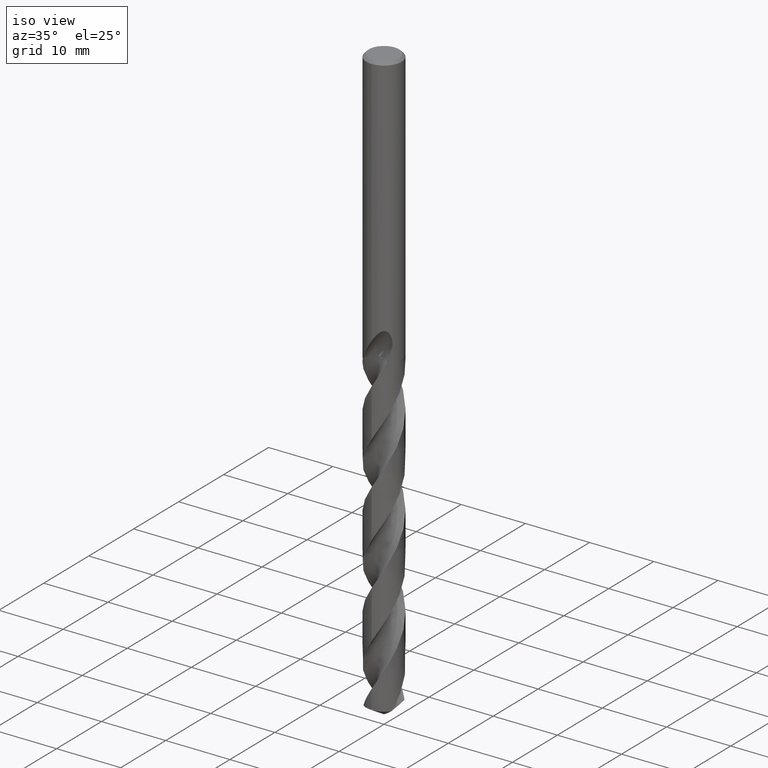
[diagram: clean part render]
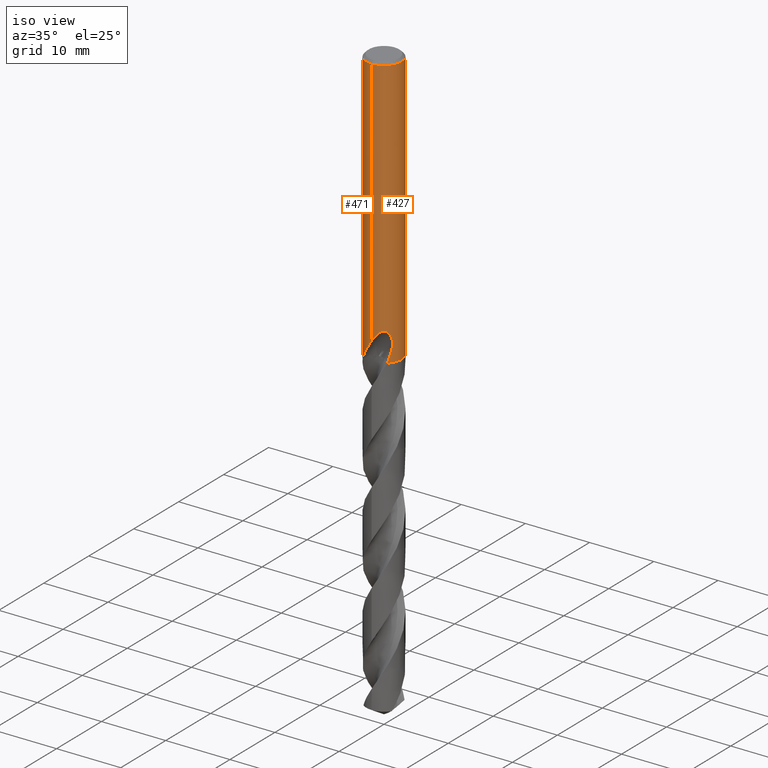
[diagram: same view with one multi-face feature highlighted, each face labeled with its STEP entity id]
A machine part, iso view. The highlighted faces form ONE feature: a constant-radius fillet chain: 2 tangent blend faces with common blend radius 2.75 mm. The faces share edges in the B-rep.
Their STEP definitions:
[1] entity #427 (Cylinder):
#273=EDGE_CURVE('',#601,#277,#772,.T.);
#277=VERTEX_POINT('',#776);
#313=EDGE_CURVE('',#367,#717,#815,.T.);
#317=EDGE_CURVE('',#717,#601,#819,.T.);
#319=VERTEX_POINT('',#821);
#345=EDGE_CURVE('',#531,#367,#851,.T.);
#355=VERTEX_POINT('',#863);
#367=VERTEX_POINT('',#877);
#427=ADVANCED_FACE('',(#942),#943,.T.);
#429=EDGE_CURVE('',#599,#355,#945,.T.);
#493=EDGE_CURVE('',#633,#671,#1015,.T.);
#507=EDGE_CURVE('',#631,#553,#1029,.T.);
#519=EDGE_CURVE('',#319,#699,#1042,.T.);
#531=VERTEX_POINT('',#1054);
#553=VERTEX_POINT('',#1077);
#567=VERTEX_POINT('',#1091);
#569=EDGE_CURVE('',#633,#699,#1093,.T.);
#577=EDGE_CURVE('',#567,#659,#1102,.T.);
#599=VERTEX_POINT('',#1126);
#601=VERTEX_POINT('',#1128);
#631=VERTEX_POINT('',#1162);
#633=VERTEX_POINT('',#1164);
#659=VERTEX_POINT('',#1192);
#671=VERTEX_POINT('',#1207);
#679=EDGE_CURVE('',#319,#531,#1215,.T.);
#695=EDGE_CURVE('',#631,#659,#1232,.T.);
#699=VERTEX_POINT('',#1237);
#707=EDGE_CURVE('',#599,#553,#1245,.T.);
#717=VERTEX_POINT('',#1257);
#723=EDGE_CURVE('',#277,#567,#1263,.T.);
#745=EDGE_CURVE('',#355,#671,#1288,.T.);
#772=LINE('',#1308,#1309);
#776=CARTESIAN_POINT('',(1.33721006514658,2.40299172734129,-26.5150484364821));
#815=LINE('',#1803,#1804);
#819=B_SPLINE_CURVE_WITH_KNOTS('',3,(#1810,#1811,#1812,#1813,#1814,#1815,#1816,#1817),.UNSPECIFIED.,.F.,.F.,(4,2,2,4),(8.22114914194285,8.53550843244374,8.84986772294463,9.48352139234592),.UNSPECIFIED.);
#821=CARTESIAN_POINT('',(-2.17418747032393E-016,2.75,-29.0310253601033));
#851=ELLIPSE('',#2264,8.38198507676688,2.75);
#863=CARTESIAN_POINT('',(2.23751594901622,-1.59875650988449,-40.7991543691702));
#877=CARTESIAN_POINT('',(0.873560781758957,2.60756429653665,-27.3198931596091));
#942=FACE_OUTER_BOUND('',#3842,.T.);
#943=CYLINDRICAL_SURFACE('',#3843,2.75);
#945=B_SPLINE_CURVE_WITH_KNOTS('',3,(#3846,#3847,#3848,#3849,#3850,#3851,#3852,#3853,#3854,#3855,#3856,#3857,#3858,#3859,#3860,#3861,#3862,#3863,#3864,#3865,#3866,#3867,#3868,#3869,#3870,#3871,#3872,#3873,#3874,#3875),.UNSPECIFIED.,.F.,.F.,(4,2,2,2,2,2,2,2,2,2,2,2,2,2,4),(0.0,1.3437091618628,2.07905816346081,2.74564402516214,3.52037638913904,4.45073491943531,5.25484128384644,5.62007727010999,5.88706539598705,6.13974390001877,6.46032615313945,6.92938882101172,7.59618986380262,8.0322299069726,8.49046744309226),.UNSPECIFIED.);
#1015=CIRCLE('',#4686,2.75);
#1029=CIRCLE('',#4885,2.75);
#1042=LINE('',#5015,#5016);
#1054=CARTESIAN_POINT('',(0.29010312703583,2.73465540346202,-28.9998328990228));
#1077=CARTESIAN_POINT('',(3.36766747301154E-016,-2.75,-0.399999999999999));
#1091=CARTESIAN_POINT('',(0.799431726384364,2.63123714530829,-26.000000276873));
#1093=B_SPLINE_CURVE_WITH_KNOTS('',3,(#5324,#5325,#5326,#5327,#5328,#5329,#5330,#5331,#5332,#5333,#5334,#5335,#5336,#5337,#5338,#5339,#5340,#5341,#5342,#5343,#5344,#5345,#5346,#5347,#5348,#5349,#5350,#5351,#5352,#5353),.UNSPECIFIED.,.F.,.F.,(4,2,2,2,2,2,2,2,2,2,2,2,2,2,4),(0.0,1.34370916186278,2.07905816346079,2.74564402516213,3.52037638913908,4.4507349194354,5.25484128384659,5.62007727011006,5.88706539598713,6.13974390001885,6.46032615313941,6.92938882101079,7.59618986379925,8.03222990696782,8.49046744308596),.UNSPECIFIED.);
#1102=B_SPLINE_CURVE_WITH_KNOTS('',3,(#5379,#5380,#5381,#5382,#5383,#5384,#5385,#5386,#5387,#5388,#5389,#5390,#5391,#5392,#5393,#5394,#5395,#5396,#5397,#5398,#5399,#5400,#5401,#5402,#5403,#5404,#5405),.UNSPECIFIED.,.F.,.F.,(4,2,3,2,2,2,2,2,2,2,2,2,4),(-0.544781504389989,-0.272390752194994,0.0,0.272390752194996,0.544781504389992,0.819026043088943,1.09327058178789,1.36428028310444,1.63528998442099,1.90725120410565,2.17921242379032,2.45117364347498,2.72313486315964),.UNSPECIFIED.);
#1126=CARTESIAN_POINT('',(8.81796487228487E-013,-2.75,-39.3818070135054));
#1128=CARTESIAN_POINT('',(1.33721006514658,2.40299172734129,-28.2901657003257));
#1162=CARTESIAN_POINT('',(0.0,2.75,-0.399999999999999));
#1164=CARTESIAN_POINT('',(1.74996988183907,2.12134518941547,-42.3));
#1192=CARTESIAN_POINT('',(-1.16429289846349E-015,2.75,-27.0232688117743));
#1207=CARTESIAN_POINT('',(1.91278221107145,-1.97579457763418,-42.3));
#1215=B_SPLINE_CURVE_WITH_KNOTS('',3,(#6463,#6464,#6465,#6466,#6467,#6468,#6469,#6470,#6471,#6472,#6473,#6474,#6475,#6476,#6477,#6478),.UNSPECIFIED.,.F.,.F.,(4,2,2,2,2,2,2,4),(5.6933891232618,6.32818769792426,6.64424985784949,6.96031201777471,7.27637417769994,7.59243633762516,7.90679566201298,8.22115498640081),.UNSPECIFIED.);
#1232=LINE('',#6653,#6654);
#1237=CARTESIAN_POINT('',(-8.84238977882663E-013,2.75,-39.3818070135054));
#1245=LINE('',#7798,#7799);
#1257=CARTESIAN_POINT('',(0.873560781758956,2.60756429653665,-28.7587351791531));
#1263=B_SPLINE_CURVE_WITH_KNOTS('',3,(#8146,#8147,#8148,#8149,#8150,#8151,#8152,#8153),.UNSPECIFIED.,.F.,.F.,(4,2,2,4),(0.63365369217847,1.26730738435694,1.58166668501394,1.89602598567094),.UNSPECIFIED.);
#1288=B_SPLINE_CURVE_WITH_KNOTS('',3,(#8791,#8792,#8793,#8794),.UNSPECIFIED.,.F.,.F.,(4,4),(0.0,1.57521843187836),.UNSPECIFIED.);
#1308=CARTESIAN_POINT('',(1.33721006514658,2.40299172734129,-27.4026070684039));
#1309=VECTOR('',#8819,1.0);
#1803=CARTESIAN_POINT('',(0.873560781758957,2.60756429653665,-28.0393141693811));
#1804=VECTOR('',#8877,1.0);
#1810=CARTESIAN_POINT('',(0.601489632040882,2.6834139118942,-28.9045509476906));
#1811=CARTESIAN_POINT('',(0.701447817945832,2.66100819274862,-28.8626326680444));
#1812=CARTESIAN_POINT('',(0.796623298204717,2.63371412142096,-28.8108447752873));
#1813=CARTESIAN_POINT('',(0.971824923940671,2.57422125505894,-28.6923202375792));
#1814=CARTESIAN_POINT('',(1.05185934280705,2.54206370558293,-28.6255751231171));
#1815=CARTESIAN_POINT('',(1.26503477913766,2.44674249684982,-28.4126694380146));
#1816=CARTESIAN_POINT('',(1.38932928352855,2.37531482409765,-28.2329958584736));
#1817=CARTESIAN_POINT('',(1.47316443649094,2.32212974294253,-28.0334520749841));
#2264=AXIS2_PLACEMENT_3D('',#8928,#8929,#8930);
#3842=EDGE_LOOP('',(#9024,#9025,#9026,#9027,#9028,#9029,#9030,#9031,#9032,#9033,#9034,#9035,#9036,#9037,#9038));
#3843=AXIS2_PLACEMENT_3D('',#9039,#9040,#9041);
#3846=CARTESIAN_POINT('',(-1.74996988183907,-2.12134518941547,-42.3));
#3847=CARTESIAN_POINT('',(-1.56875403661205,-2.27083631082352,-41.9186466627911));
#3848=CARTESIAN_POINT('',(-1.36059374862,-2.40362250481249,-41.5629200217183));
#3849=CARTESIAN_POINT('',(-0.997625977415598,-2.56652359633652,-40.9684363668679));
#3850=CARTESIAN_POINT('',(-0.866832798877864,-2.61344677877229,-40.7589629714317));
#3851=CARTESIAN_POINT('',(-0.613553441378672,-2.68359227609557,-40.3533417945509));
#3852=CARTESIAN_POINT('',(-0.492186908458969,-2.70837462857852,-40.1590668957964));
#3853=CARTESIAN_POINT('',(-0.229425238219378,-2.74411762868622,-39.7402816831765));
#3854=CARTESIAN_POINT('',(-0.0858221790454658,-2.75247795021598,-39.5124753474329));
#3855=CARTESIAN_POINT('',(0.233044061092436,-2.74562837072234,-39.0252564930299));
#3856=CARTESIAN_POINT('',(0.422126898663139,-2.72479224500972,-38.7480250448905));
#3857=CARTESIAN_POINT('',(0.786300140875955,-2.64088050736189,-38.2916869721627));
#3858=CARTESIAN_POINT('',(0.987392040117653,-2.57714486253417,-38.0694823457717));
#3859=CARTESIAN_POINT('',(1.29197250737324,-2.42991198642466,-37.8611033985666));
#3860=CARTESIAN_POINT('',(1.39294638262973,-2.37424376664441,-37.8095323721426));
#3861=CARTESIAN_POINT('',(1.56988448551531,-2.2596214202516,-37.769935084797));
#3862=CARTESIAN_POINT('',(1.6424607353954,-2.20741888321003,-37.7692135517096));
#3863=CARTESIAN_POINT('',(1.77764118327539,-2.09989181933012,-37.8039425681785));
#3864=CARTESIAN_POINT('',(1.83676368201709,-2.04795713128521,-37.8364906976556));
#3865=CARTESIAN_POINT('',(1.95708251425496,-1.93414230375797,-37.938317951783));
#3866=CARTESIAN_POINT('',(2.01274796524238,-1.87515932018323,-38.0134975547799));
#3867=CARTESIAN_POINT('',(2.12676908478419,-1.7463658769773,-38.2193592851678));
#3868=CARTESIAN_POINT('',(2.1812664025989,-1.67623046610203,-38.3720491578603));
#3869=CARTESIAN_POINT('',(2.28373237922151,-1.53542097167682,-38.7992364949134));
#3870=CARTESIAN_POINT('',(2.32076648445131,-1.47545853550841,-39.1034670007578));
#3871=CARTESIAN_POINT('',(2.339051761766,-1.44620982454372,-39.6663620941464));
#3872=CARTESIAN_POINT('',(2.33472724687543,-1.45338013681144,-39.8904325912064));
#3873=CARTESIAN_POINT('',(2.30426371212637,-1.50123741266447,-40.3451790199591));
#3874=CARTESIAN_POINT('',(2.27707670193375,-1.54338984519179,-40.5741435706793));
#3875=CARTESIAN_POINT('',(2.23751594901622,-1.59875650988449,-40.7991543691702));
#4686=AXIS2_PLACEMENT_3D('',#9123,#9124,#9125);
#4885=AXIS2_PLACEMENT_3D('',#9127,#9128,#9129);
#5015=CARTESIAN_POINT('',(-3.36766747301154E-016,2.75,-36.65));
#5016=VECTOR('',#9138,1.0);
#5324=CARTESIAN_POINT('',(1.74996988183907,2.12134518941547,-42.3));
#5325=CARTESIAN_POINT('',(1.56875403661205,2.27083631082352,-41.9186466627911));
#5326=CARTESIAN_POINT('',(1.36059374862,2.40362250481249,-41.5629200217183));
#5327=CARTESIAN_POINT('',(0.997625977415596,2.56652359633653,-40.9684363668679));
#5328=CARTESIAN_POINT('',(0.866832798877859,2.61344677877229,-40.7589629714317));
#5329=CARTESIAN_POINT('',(0.613553441378672,2.68359227609557,-40.3533417945509));
#5330=CARTESIAN_POINT('',(0.492186908458968,2.70837462857852,-40.1590668957964));
#5331=CARTESIAN_POINT('',(0.229425238219375,2.74411762868622,-39.7402816831765));
#5332=CARTESIAN_POINT('',(0.0858221790454625,2.75247795021598,-39.5124753474329));
#5333=CARTESIAN_POINT('',(-0.233044061092435,2.74562837072235,-39.0252564930299));
#5334=CARTESIAN_POINT('',(-0.422126898663138,2.72479224500972,-38.7480250448905));
#5335=CARTESIAN_POINT('',(-0.786300140875956,2.64088050736189,-38.2916869721627));
#5336=CARTESIAN_POINT('',(-0.987392040117653,2.57714486253417,-38.0694823457717));
#5337=CARTESIAN_POINT('',(-1.29197250737321,2.42991198642467,-37.8611033985666));
#5338=CARTESIAN_POINT('',(-1.39294638262972,2.37424376664442,-37.8095323721426));
#5339=CARTESIAN_POINT('',(-1.56988448551534,2.25962142025158,-37.769935084797));
#5340=CARTESIAN_POINT('',(-1.64246073539541,2.20741888321002,-37.7692135517096));
#5341=CARTESIAN_POINT('',(-1.77764118327538,2.09989181933013,-37.8039425681785));
#5342=CARTESIAN_POINT('',(-1.83676368201706,2.04795713128524,-37.8364906976556));
#5343=CARTESIAN_POINT('',(-1.95708251425498,1.93414230375795,-37.938317951783));
#5344=CARTESIAN_POINT('',(-2.01274796524241,1.8751593201832,-38.01349755478));
#5345=CARTESIAN_POINT('',(-2.12676908478404,1.74636587697746,-38.2193592851675));
#5346=CARTESIAN_POINT('',(-2.1812664025988,1.67623046610216,-38.3720491578599));
#5347=CARTESIAN_POINT('',(-2.28373237922154,1.53542097167677,-38.7992364949135));
#5348=CARTESIAN_POINT('',(-2.32076648445132,1.4754585355084,-39.103467000758));
#5349=CARTESIAN_POINT('',(-2.339051761766,1.44620982454373,-39.6663620941464));
#5350=CARTESIAN_POINT('',(-2.33472724687543,1.45338013681143,-39.8904325912064));
#5351=CARTESIAN_POINT('',(-2.30426371212636,1.50123741266447,-40.3451790199591));
#5352=CARTESIAN_POINT('',(-2.27707670193374,1.5433898451918,-40.5741435706794));
#5353=CARTESIAN_POINT('',(-2.23751594901622,1.59875650988449,-40.7991543691702));
#5379=CARTESIAN_POINT('',(0.665771541632002,2.66819194481075,-25.8142466509837));
#5380=CARTESIAN_POINT('',(0.728886384022112,2.65244342791726,-25.8775915883881));
#5381=CARTESIAN_POINT('',(0.783880707173971,2.63619126654373,-25.9578475863508));
#5382=CARTESIAN_POINT('',(0.857153272768013,2.61328560993418,-26.1344476516523));
#5383=CARTESIAN_POINT('',(0.875400981188567,2.60694708847995,-26.2308450951885));
#5384=CARTESIAN_POINT('',(0.875400981188567,2.60694708847995,-26.3216420125868));
#5385=CARTESIAN_POINT('',(0.875400981188567,2.60694708847995,-26.4124389299851));
#5386=CARTESIAN_POINT('',(0.857153272768012,2.61328560993418,-26.5088363735212));
#5387=CARTESIAN_POINT('',(0.783880707173968,2.63619126654374,-26.6854364388227));
#5388=CARTESIAN_POINT('',(0.728886384022113,2.65244342791726,-26.7656924367854));
#5389=CARTESIAN_POINT('',(0.602227163943505,2.68404764004212,-26.8928134128306));
#5390=CARTESIAN_POINT('',(0.521733300217773,2.70154460976948,-26.9482343341297));
#5391=CARTESIAN_POINT('',(0.344541424683386,2.72980587615917,-27.0221021344558));
#5392=CARTESIAN_POINT('',(0.247793037073933,2.74033853472331,-27.0405166027747));
#5393=CARTESIAN_POINT('',(0.0663362759674763,2.75068358664663,-27.0405166027747));
#5394=CARTESIAN_POINT('',(-0.0299116612408722,2.75126246188806,-27.0224894597774));
#5395=CARTESIAN_POINT('',(-0.206833293028733,2.7436398872559,-26.9492693129404));
#5396=CARTESIAN_POINT('',(-0.287522369074154,2.73568166560296,-26.8940883573449));
#5397=CARTESIAN_POINT('',(-0.415119997588476,2.71925130881564,-26.7667840769712));
#5398=CARTESIAN_POINT('',(-0.470538724037373,2.7097040517631,-26.6860287830353));
#5399=CARTESIAN_POINT('',(-0.544159636830953,2.69588446720977,-26.5087981763507));
#5400=CARTESIAN_POINT('',(-0.562348199187247,2.69188864979049,-26.4122957524817));
#5401=CARTESIAN_POINT('',(-0.562348199187247,2.69188864979049,-26.2309882726919));
#5402=CARTESIAN_POINT('',(-0.544159636830955,2.69588446720977,-26.1344858488229));
#5403=CARTESIAN_POINT('',(-0.470538724037374,2.7097040517631,-25.9572552421382));
#5404=CARTESIAN_POINT('',(-0.415119997588476,2.71925130881564,-25.8764999482023));
#5405=CARTESIAN_POINT('',(-0.351209380394395,2.72748088373191,-25.8127362621146));
#6463=CARTESIAN_POINT('',(-1.52996159165941,2.2851077716482,-28.0332799124806));
#6464=CARTESIAN_POINT('',(-1.44631597300797,2.34111137509018,-28.2324366615127));
#6465=CARTESIAN_POINT('',(-1.32250219035285,2.4162199836653,-28.4115593374441));
#6466=CARTESIAN_POINT('',(-1.11019118417717,2.51715742946781,-28.624151057468));
#6467=CARTESIAN_POINT('',(-1.03027263404493,2.55141531254613,-28.6909833479814));
#6468=CARTESIAN_POINT('',(-0.855212746268426,2.61529978320132,-28.8097518079273));
#6469=CARTESIAN_POINT('',(-0.760062546766947,2.64488607247651,-28.8616965876911));
#6470=CARTESIAN_POINT('',(-0.560004548992131,2.69434822306571,-28.9458777045139));
#6471=CARTESIAN_POINT('',(-0.454895780759893,2.71424255436112,-28.9781809697304));
#6472=CARTESIAN_POINT('',(-0.241751439374123,2.74145929330977,-29.0208867485696));
#6473=CARTESIAN_POINT('',(-0.133710619323009,2.74876716853734,-29.0312723335086));
#6474=CARTESIAN_POINT('',(0.0764186989741135,2.75093445591884,-29.0312723335086));
#6475=CARTESIAN_POINT('',(0.184032629107216,2.74591589544373,-29.0209962157904));
#6476=CARTESIAN_POINT('',(0.396586815044307,2.72335106284905,-28.9785871699004));
#6477=CARTESIAN_POINT('',(0.501531717356681,2.70581958119015,-28.9464696632046));
#6478=CARTESIAN_POINT('',(0.601489911800748,2.68341384918576,-28.9045513793387));
#6653=CARTESIAN_POINT('',(-3.36766747301154E-016,2.75,-36.65));
#6654=VECTOR('',#9332,1.0);
#7798=CARTESIAN_POINT('',(3.36766747301154E-016,-2.75,-36.65));
#7799=VECTOR('',#9344,1.0);
#8146=CARTESIAN_POINT('',(1.47316444420588,2.32212973804815,-26.7717620750811));
#8147=CARTESIAN_POINT('',(1.38932928819419,2.37531482152837,-26.5722182845909));
#8148=CARTESIAN_POINT('',(1.2650347793022,2.44674249712733,-26.3925446987512));
#8149=CARTESIAN_POINT('',(1.05185933527012,2.54206370877889,-26.1796390063729));
#8150=CARTESIAN_POINT('',(0.971824913698824,2.5742212590321,-26.1128938897649));
#8151=CARTESIAN_POINT('',(0.796623282041988,2.63371412641395,-25.9943693482392));
#8152=CARTESIAN_POINT('',(0.701447798566565,2.66100819798206,-25.9425814538105));
#8153=CARTESIAN_POINT('',(0.601489609302798,2.68341391699096,-25.9006631728201));
#8791=CARTESIAN_POINT('',(2.23751594906884,-1.59875650981085,-40.7991543691992));
#8792=CARTESIAN_POINT('',(2.14915335052936,-1.7224230733682,-41.3017477323627));
#8793=CARTESIAN_POINT('',(2.04271716769281,-1.85000352808121,-41.8072979768417));
#8794=CARTESIAN_POINT('',(1.91278221107145,-1.97579457763418,-42.3));
#8819=DIRECTION('',(-0.0,-0.0,1.0));
#8877=DIRECTION('',(0.0,0.0,-1.0));
#8928=CARTESIAN_POINT('',(0.0,0.0,-29.8351219173269));
#8929=DIRECTION('',(0.944648353914092,0.0,-0.328084573619969));
#8930=DIRECTION('',(0.328084573619969,-0.0,0.944648353914092));
#9024=ORIENTED_EDGE('',*,*,#695,.F.);
#9025=ORIENTED_EDGE('',*,*,#507,.T.);
#9026=ORIENTED_EDGE('',*,*,#707,.F.);
#9027=ORIENTED_EDGE('',*,*,#429,.T.);
#9028=ORIENTED_EDGE('',*,*,#745,.T.);
#9029=ORIENTED_EDGE('',*,*,#493,.F.);
#9030=ORIENTED_EDGE('',*,*,#569,.T.);
#9031=ORIENTED_EDGE('',*,*,#519,.F.);
#9032=ORIENTED_EDGE('',*,*,#679,.T.);
#9033=ORIENTED_EDGE('',*,*,#345,.T.);
#9034=ORIENTED_EDGE('',*,*,#313,.T.);
#9035=ORIENTED_EDGE('',*,*,#317,.T.);
#9036=ORIENTED_EDGE('',*,*,#273,.T.);
#9037=ORIENTED_EDGE('',*,*,#723,.T.);
#9038=ORIENTED_EDGE('',*,*,#577,.T.);
#9039=CARTESIAN_POINT('',(0.0,0.0,-36.65));
#9040=DIRECTION('',(-0.0,-0.0,1.0));
#9041=DIRECTION('',(0.0,1.0,0.0));
#9123=CARTESIAN_POINT('',(0.0,0.0,-42.3));
#9124=DIRECTION('',(0.0,0.0,-1.0));
#9125=DIRECTION('',(0.0,1.0,0.0));
#9127=CARTESIAN_POINT('',(0.0,0.0,-0.399999999999999));
#9128=DIRECTION('',(0.0,0.0,-1.0));
#9129=DIRECTION('',(0.0,1.0,0.0));
#9138=DIRECTION('',(0.0,0.0,-1.0));
#9332=DIRECTION('',(0.0,0.0,-1.0));
#9344=DIRECTION('',(-0.0,-0.0,1.0));
[2] entity #471 (Cylinder):
#307=VERTEX_POINT('',#809);
#319=VERTEX_POINT('',#821);
#361=EDGE_CURVE('',#639,#647,#871,.T.);
#411=VERTEX_POINT('',#924);
#453=VERTEX_POINT('',#969);
#465=EDGE_CURVE('',#647,#307,#983,.T.);
#469=VERTEX_POINT('',#988);
#471=ADVANCED_FACE('',(#990),#991,.T.);
#479=EDGE_CURVE('',#659,#505,#1000,.T.);
#505=VERTEX_POINT('',#1027);
#519=EDGE_CURVE('',#319,#699,#1042,.T.);
#537=EDGE_CURVE('',#411,#599,#1060,.T.);
#543=VERTEX_POINT('',#1066);
#551=EDGE_CURVE('',#699,#543,#1075,.T.);
#553=VERTEX_POINT('',#1077);
#571=EDGE_CURVE('',#307,#319,#1095,.T.);
#599=VERTEX_POINT('',#1126);
#623=VERTEX_POINT('',#1153);
#631=VERTEX_POINT('',#1162);
#639=VERTEX_POINT('',#1171);
#647=VERTEX_POINT('',#1180);
#653=EDGE_CURVE('',#543,#623,#1186,.T.);
#659=VERTEX_POINT('',#1192);
#673=EDGE_CURVE('',#453,#469,#1209,.T.);
#695=EDGE_CURVE('',#631,#659,#1232,.T.);
#699=VERTEX_POINT('',#1237);
#703=EDGE_CURVE('',#505,#453,#1241,.T.);
#707=EDGE_CURVE('',#599,#553,#1245,.T.);
#727=EDGE_CURVE('',#411,#623,#1268,.T.);
#749=EDGE_CURVE('',#469,#639,#1292,.T.);
#751=EDGE_CURVE('',#553,#631,#1294,.T.);
#809=CARTESIAN_POINT('',(-1.337052752443,2.40307926152772,-28.3720803908795));
#821=CARTESIAN_POINT('',(-2.17418747032393E-016,2.75,-29.0310253601033));
#871=LINE('',#3388,#3389);
#924=CARTESIAN_POINT('',(-1.74996988183907,-2.12134518941547,-42.3));
#969=CARTESIAN_POINT('',(-0.562333990228013,2.69189161806976,-26.3171221986971));
#983=ELLIPSE('',#4451,3.06605318811787,2.75);
#988=CARTESIAN_POINT('',(-1.0350734039088,2.54776824858947,-26.3171221986971));
#990=FACE_OUTER_BOUND('',#4458,.T.);
#991=CYLINDRICAL_SURFACE('',#4459,2.75);
#1000=B_SPLINE_CURVE_WITH_KNOTS('',3,(#4469,#4470,#4471,#4472,#4473,#4474,#4475,#4476,#4477,#4478,#4479,#4480,#4481,#4482,#4483,#4484,#4485,#4486,#4487,#4488,#4489,#4490,#4491,#4492,#4493,#4494,#4495),.UNSPECIFIED.,.F.,.F.,(4,2,3,2,2,2,2,2,2,2,2,2,4),(-0.544781504389989,-0.272390752194994,0.0,0.272390752194996,0.544781504389992,0.819026043088943,1.09327058178789,1.36428028310444,1.63528998442099,1.90725120410565,2.17921242379032,2.45117364347498,2.72313486315964),.UNSPECIFIED.);
#1027=CARTESIAN_POINT('',(-0.486378944383046,2.70664654553579,-26.6432837483006));
#1042=LINE('',#5015,#5016);
#1060=B_SPLINE_CURVE_WITH_KNOTS('',3,(#5226,#5227,#5228,#5229,#5230,#5231,#5232,#5233,#5234,#5235,#5236,#5237,#5238,#5239,#5240,#5241,#5242,#5243,#5244,#5245,#5246,#5247,#5248,#5249,#5250,#5251,#5252,#5253,#5254,#5255),.UNSPECIFIED.,.F.,.F.,(4,2,2,2,2,2,2,2,2,2,2,2,2,2,4),(0.0,1.3437091618628,2.07905816346081,2.74564402516214,3.52037638913904,4.45073491943531,5.25484128384644,5.62007727010999,5.88706539598705,6.13974390001877,6.46032615313945,6.92938882101172,7.59618986380262,8.0322299069726,8.49046744309226),.UNSPECIFIED.);
#1066=CARTESIAN_POINT('',(-2.23751594901622,1.59875650988449,-40.7991543691702));
#1075=B_SPLINE_CURVE_WITH_KNOTS('',3,(#5274,#5275,#5276,#5277,#5278,#5279,#5280,#5281,#5282,#5283,#5284,#5285,#5286,#5287,#5288,#5289,#5290,#5291,#5292,#5293,#5294,#5295,#5296,#5297,#5298,#5299,#5300,#5301,#5302,#5303),.UNSPECIFIED.,.F.,.F.,(4,2,2,2,2,2,2,2,2,2,2,2,2,2,4),(0.0,1.34370916186278,2.07905816346079,2.74564402516213,3.52037638913908,4.4507349194354,5.25484128384659,5.62007727011006,5.88706539598713,6.13974390001885,6.46032615313941,6.92938882101079,7.59618986379925,8.03222990696782,8.49046744308596),.UNSPECIFIED.);
#1077=CARTESIAN_POINT('',(3.36766747301154E-016,-2.75,-0.399999999999999));
#1095=B_SPLINE_CURVE_WITH_KNOTS('',3,(#5356,#5357,#5358,#5359,#5360,#5361,#5362,#5363,#5364,#5365,#5366,#5367,#5368,#5369,#5370,#5371),.UNSPECIFIED.,.F.,.F.,(4,2,2,2,2,2,2,4),(5.6933891232618,6.32818769792426,6.64424985784949,6.96031201777471,7.27637417769994,7.59243633762516,7.90679566201298,8.22115498640081),.UNSPECIFIED.);
#1126=CARTESIAN_POINT('',(8.81796487228487E-013,-2.75,-39.3818070135054));
#1153=CARTESIAN_POINT('',(-1.91278221107145,1.97579457763418,-42.3));
#1162=CARTESIAN_POINT('',(0.0,2.75,-0.399999999999999));
#1171=CARTESIAN_POINT('',(2.35719168458961E-016,2.75,-27.5000801551881));
#1180=CARTESIAN_POINT('',(-3.36766747301154E-016,2.75,-27.7128911336578));
#1186=B_SPLINE_CURVE_WITH_KNOTS('',3,(#6420,#6421,#6422,#6423),.UNSPECIFIED.,.F.,.F.,(4,4),(0.0,1.57521843187834),.UNSPECIFIED.);
#1192=CARTESIAN_POINT('',(-1.16429289846349E-015,2.75,-27.0232688117743));
#1209=CIRCLE('',#6456,2.75);
#1232=LINE('',#6653,#6654);
#1237=CARTESIAN_POINT('',(-8.84238977882663E-013,2.75,-39.3818070135054));
#1241=B_SPLINE_CURVE_WITH_KNOTS('',3,(#7765,#7766,#7767,#7768,#7769,#7770,#7771,#7772,#7773,#7774,#7775,#7776,#7777,#7778,#7779,#7780,#7781,#7782,#7783,#7784,#7785,#7786,#7787,#7788,#7789,#7790,#7791),.UNSPECIFIED.,.F.,.F.,(4,2,3,2,2,2,2,2,2,2,2,2,4),(-0.544781504389989,-0.272390752194994,0.0,0.272390752194996,0.544781504389992,0.819026043088943,1.09327058178789,1.36428028310444,1.63528998442099,1.90725120410565,2.17921242379032,2.45117364347498,2.72313486315964),.UNSPECIFIED.);
#1245=LINE('',#7798,#7799);
#1268=CIRCLE('',#8562,2.75);
#1292=B_SPLINE_CURVE_WITH_KNOTS('',3,(#8801,#8802,#8803,#8804,#8805,#8806,#8807,#8808,#8809,#8810,#8811,#8812,#8813,#8814),.UNSPECIFIED.,.F.,.F.,(4,2,2,2,2,2,4),(3.1689505620908,3.62058983596024,4.07222910982969,4.52386838369913,4.9721438344798,5.42041928526047,5.87740577220251),.UNSPECIFIED.);
#1294=CIRCLE('',#8817,2.75);
#3388=CARTESIAN_POINT('',(-3.36766747301154E-016,2.75,-36.65));
#3389=VECTOR('',#8966,1.0);
#4451=AXIS2_PLACEMENT_3D('',#9062,#9063,#9064);
#4458=EDGE_LOOP('',(#9074,#9075,#9076,#9077,#9078,#9079,#9080,#9081,#9082,#9083,#9084,#9085,#9086,#9087,#9088));
#4459=AXIS2_PLACEMENT_3D('',#9089,#9090,#9091);
#4469=CARTESIAN_POINT('',(0.665771541632002,2.66819194481075,-25.8142466509837));
#4470=CARTESIAN_POINT('',(0.728886384022112,2.65244342791726,-25.8775915883881));
#4471=CARTESIAN_POINT('',(0.783880707173971,2.63619126654373,-25.9578475863508));
#4472=CARTESIAN_POINT('',(0.857153272768013,2.61328560993418,-26.1344476516523));
#4473=CARTESIAN_POINT('',(0.875400981188567,2.60694708847995,-26.2308450951885));
#4474=CARTESIAN_POINT('',(0.875400981188567,2.60694708847995,-26.3216420125868));
#4475=CARTESIAN_POINT('',(0.875400981188567,2.60694708847995,-26.4124389299851));
#4476=CARTESIAN_POINT('',(0.857153272768012,2.61328560993418,-26.5088363735212));
#4477=CARTESIAN_POINT('',(0.783880707173968,2.63619126654374,-26.6854364388227));
#4478=CARTESIAN_POINT('',(0.728886384022113,2.65244342791726,-26.7656924367854));
#4479=CARTESIAN_POINT('',(0.602227163943505,2.68404764004212,-26.8928134128306));
#4480=CARTESIAN_POINT('',(0.521733300217773,2.70154460976948,-26.9482343341297));
#4481=CARTESIAN_POINT('',(0.344541424683386,2.72980587615917,-27.0221021344558));
#4482=CARTESIAN_POINT('',(0.247793037073933,2.74033853472331,-27.0405166027747));
#4483=CARTESIAN_POINT('',(0.0663362759674763,2.75068358664663,-27.0405166027747));
#4484=CARTESIAN_POINT('',(-0.0299116612408722,2.75126246188806,-27.0224894597774));
#4485=CARTESIAN_POINT('',(-0.206833293028733,2.7436398872559,-26.9492693129404));
#4486=CARTESIAN_POINT('',(-0.287522369074154,2.73568166560296,-26.8940883573449));
#4487=CARTESIAN_POINT('',(-0.415119997588476,2.71925130881564,-26.7667840769712));
#4488=CARTESIAN_POINT('',(-0.470538724037373,2.7097040517631,-26.6860287830353));
#4489=CARTESIAN_POINT('',(-0.544159636830953,2.69588446720977,-26.5087981763507));
#4490=CARTESIAN_POINT('',(-0.562348199187247,2.69188864979049,-26.4122957524817));
#4491=CARTESIAN_POINT('',(-0.562348199187247,2.69188864979049,-26.2309882726919));
#4492=CARTESIAN_POINT('',(-0.544159636830955,2.69588446720977,-26.1344858488229));
#4493=CARTESIAN_POINT('',(-0.470538724037374,2.7097040517631,-25.9572552421382));
#4494=CARTESIAN_POINT('',(-0.415119997588476,2.71925130881564,-25.8764999482023));
#4495=CARTESIAN_POINT('',(-0.351209380394395,2.72748088373191,-25.8127362621146));
#5015=CARTESIAN_POINT('',(-3.36766747301154E-016,2.75,-36.65));
#5016=VECTOR('',#9138,1.0);
#5226=CARTESIAN_POINT('',(-1.74996988183907,-2.12134518941547,-42.3));
#5227=CARTESIAN_POINT('',(-1.56875403661205,-2.27083631082352,-41.9186466627911));
#5228=CARTESIAN_POINT('',(-1.36059374862,-2.40362250481249,-41.5629200217183));
#5229=CARTESIAN_POINT('',(-0.997625977415598,-2.56652359633652,-40.9684363668679));
#5230=CARTESIAN_POINT('',(-0.866832798877864,-2.61344677877229,-40.7589629714317));
#5231=CARTESIAN_POINT('',(-0.613553441378672,-2.68359227609557,-40.3533417945509));
#5232=CARTESIAN_POINT('',(-0.492186908458969,-2.70837462857852,-40.1590668957964));
#5233=CARTESIAN_POINT('',(-0.229425238219378,-2.74411762868622,-39.7402816831765));
#5234=CARTESIAN_POINT('',(-0.0858221790454658,-2.75247795021598,-39.5124753474329));
#5235=CARTESIAN_POINT('',(0.233044061092436,-2.74562837072234,-39.0252564930299));
#5236=CARTESIAN_POINT('',(0.422126898663139,-2.72479224500972,-38.7480250448905));
#5237=CARTESIAN_POINT('',(0.786300140875955,-2.64088050736189,-38.2916869721627));
#5238=CARTESIAN_POINT('',(0.987392040117653,-2.57714486253417,-38.0694823457717));
#5239=CARTESIAN_POINT('',(1.29197250737324,-2.42991198642466,-37.8611033985666));
#5240=CARTESIAN_POINT('',(1.39294638262973,-2.37424376664441,-37.8095323721426));
#5241=CARTESIAN_POINT('',(1.56988448551531,-2.2596214202516,-37.769935084797));
#5242=CARTESIAN_POINT('',(1.6424607353954,-2.20741888321003,-37.7692135517096));
#5243=CARTESIAN_POINT('',(1.77764118327539,-2.09989181933012,-37.8039425681785));
#5244=CARTESIAN_POINT('',(1.83676368201709,-2.04795713128521,-37.8364906976556));
#5245=CARTESIAN_POINT('',(1.95708251425496,-1.93414230375797,-37.938317951783));
#5246=CARTESIAN_POINT('',(2.01274796524238,-1.87515932018323,-38.0134975547799));
#5247=CARTESIAN_POINT('',(2.12676908478419,-1.7463658769773,-38.2193592851678));
#5248=CARTESIAN_POINT('',(2.1812664025989,-1.67623046610203,-38.3720491578603));
#5249=CARTESIAN_POINT('',(2.28373237922151,-1.53542097167682,-38.7992364949134));
#5250=CARTESIAN_POINT('',(2.32076648445131,-1.47545853550841,-39.1034670007578));
#5251=CARTESIAN_POINT('',(2.339051761766,-1.44620982454372,-39.6663620941464));
#5252=CARTESIAN_POINT('',(2.33472724687543,-1.45338013681144,-39.8904325912064));
#5253=CARTESIAN_POINT('',(2.30426371212637,-1.50123741266447,-40.3451790199591));
#5254=CARTESIAN_POINT('',(2.27707670193375,-1.54338984519179,-40.5741435706793));
#5255=CARTESIAN_POINT('',(2.23751594901622,-1.59875650988449,-40.7991543691702));
#5274=CARTESIAN_POINT('',(1.74996988183907,2.12134518941547,-42.3));
#5275=CARTESIAN_POINT('',(1.56875403661205,2.27083631082352,-41.9186466627911));
#5276=CARTESIAN_POINT('',(1.36059374862,2.40362250481249,-41.5629200217183));
#5277=CARTESIAN_POINT('',(0.997625977415596,2.56652359633653,-40.9684363668679));
#5278=CARTESIAN_POINT('',(0.866832798877859,2.61344677877229,-40.7589629714317));
#5279=CARTESIAN_POINT('',(0.613553441378672,2.68359227609557,-40.3533417945509));
#5280=CARTESIAN_POINT('',(0.492186908458968,2.70837462857852,-40.1590668957964));
#5281=CARTESIAN_POINT('',(0.229425238219375,2.74411762868622,-39.7402816831765));
#5282=CARTESIAN_POINT('',(0.0858221790454625,2.75247795021598,-39.5124753474329));
#5283=CARTESIAN_POINT('',(-0.233044061092435,2.74562837072235,-39.0252564930299));
#5284=CARTESIAN_POINT('',(-0.422126898663138,2.72479224500972,-38.7480250448905));
#5285=CARTESIAN_POINT('',(-0.786300140875956,2.64088050736189,-38.2916869721627));
#5286=CARTESIAN_POINT('',(-0.987392040117653,2.57714486253417,-38.0694823457717));
#5287=CARTESIAN_POINT('',(-1.29197250737321,2.42991198642467,-37.8611033985666));
#5288=CARTESIAN_POINT('',(-1.39294638262972,2.37424376664442,-37.8095323721426));
#5289=CARTESIAN_POINT('',(-1.56988448551534,2.25962142025158,-37.769935084797));
#5290=CARTESIAN_POINT('',(-1.64246073539541,2.20741888321002,-37.7692135517096));
#5291=CARTESIAN_POINT('',(-1.77764118327538,2.09989181933013,-37.8039425681785));
#5292=CARTESIAN_POINT('',(-1.83676368201706,2.04795713128524,-37.8364906976556));
#5293=CARTESIAN_POINT('',(-1.95708251425498,1.93414230375795,-37.938317951783));
#5294=CARTESIAN_POINT('',(-2.01274796524241,1.8751593201832,-38.01349755478));
#5295=CARTESIAN_POINT('',(-2.12676908478404,1.74636587697746,-38.2193592851675));
#5296=CARTESIAN_POINT('',(-2.1812664025988,1.67623046610216,-38.3720491578599));
#5297=CARTESIAN_POINT('',(-2.28373237922154,1.53542097167677,-38.7992364949135));
#5298=CARTESIAN_POINT('',(-2.32076648445132,1.4754585355084,-39.103467000758));
#5299=CARTESIAN_POINT('',(-2.339051761766,1.44620982454373,-39.6663620941464));
#5300=CARTESIAN_POINT('',(-2.33472724687543,1.45338013681143,-39.8904325912064));
#5301=CARTESIAN_POINT('',(-2.30426371212636,1.50123741266447,-40.3451790199591));
#5302=CARTESIAN_POINT('',(-2.27707670193374,1.5433898451918,-40.5741435706794));
#5303=CARTESIAN_POINT('',(-2.23751594901622,1.59875650988449,-40.7991543691702));
#5356=CARTESIAN_POINT('',(-1.52996159165941,2.2851077716482,-28.0332799124806));
#5357=CARTESIAN_POINT('',(-1.44631597300797,2.34111137509018,-28.2324366615127));
#5358=CARTESIAN_POINT('',(-1.32250219035285,2.4162199836653,-28.4115593374441));
#5359=CARTESIAN_POINT('',(-1.11019118417717,2.51715742946781,-28.624151057468));
#5360=CARTESIAN_POINT('',(-1.03027263404493,2.55141531254613,-28.6909833479814));
#5361=CARTESIAN_POINT('',(-0.855212746268426,2.61529978320132,-28.8097518079273));
#5362=CARTESIAN_POINT('',(-0.760062546766947,2.64488607247651,-28.8616965876911));
#5363=CARTESIAN_POINT('',(-0.560004548992131,2.69434822306571,-28.9458777045139));
#5364=CARTESIAN_POINT('',(-0.454895780759893,2.71424255436112,-28.9781809697304));
#5365=CARTESIAN_POINT('',(-0.241751439374123,2.74145929330977,-29.0208867485696));
#5366=CARTESIAN_POINT('',(-0.133710619323009,2.74876716853734,-29.0312723335086));
#5367=CARTESIAN_POINT('',(0.0764186989741135,2.75093445591884,-29.0312723335086));
#5368=CARTESIAN_POINT('',(0.184032629107216,2.74591589544373,-29.0209962157904));
#5369=CARTESIAN_POINT('',(0.396586815044307,2.72335106284905,-28.9785871699004));
#5370=CARTESIAN_POINT('',(0.501531717356681,2.70581958119015,-28.9464696632046));
#5371=CARTESIAN_POINT('',(0.601489911800748,2.68341384918576,-28.9045513793387));
#6420=CARTESIAN_POINT('',(-2.23751594906884,1.59875650981085,-40.7991543691992));
#6421=CARTESIAN_POINT('',(-2.14915335052936,1.7224230733682,-41.3017477323627));
#6422=CARTESIAN_POINT('',(-2.04271716769281,1.85000352808121,-41.8072979768417));
#6423=CARTESIAN_POINT('',(-1.91278221107145,1.97579457763418,-42.3));
#6456=AXIS2_PLACEMENT_3D('',#9310,#9311,#9312);
#6653=CARTESIAN_POINT('',(-3.36766747301154E-016,2.75,-36.65));
#6654=VECTOR('',#9332,1.0);
#7765=CARTESIAN_POINT('',(0.665771541632002,2.66819194481075,-25.8142466509837));
#7766=CARTESIAN_POINT('',(0.728886384022112,2.65244342791726,-25.8775915883881));
#7767=CARTESIAN_POINT('',(0.783880707173971,2.63619126654373,-25.9578475863508));
#7768=CARTESIAN_POINT('',(0.857153272768013,2.61328560993418,-26.1344476516523));
#7769=CARTESIAN_POINT('',(0.875400981188567,2.60694708847995,-26.2308450951885));
#7770=CARTESIAN_POINT('',(0.875400981188567,2.60694708847995,-26.3216420125868));
#7771=CARTESIAN_POINT('',(0.875400981188567,2.60694708847995,-26.4124389299851));
#7772=CARTESIAN_POINT('',(0.857153272768012,2.61328560993418,-26.5088363735212));
#7773=CARTESIAN_POINT('',(0.783880707173968,2.63619126654374,-26.6854364388227));
#7774=CARTESIAN_POINT('',(0.728886384022113,2.65244342791726,-26.7656924367854));
#7775=CARTESIAN_POINT('',(0.602227163943505,2.68404764004212,-26.8928134128306));
#7776=CARTESIAN_POINT('',(0.521733300217773,2.70154460976948,-26.9482343341297));
#7777=CARTESIAN_POINT('',(0.344541424683386,2.72980587615917,-27.0221021344558));
#7778=CARTESIAN_POINT('',(0.247793037073933,2.74033853472331,-27.0405166027747));
#7779=CARTESIAN_POINT('',(0.0663362759674763,2.75068358664663,-27.0405166027747));
#7780=CARTESIAN_POINT('',(-0.0299116612408722,2.75126246188806,-27.0224894597774));
#7781=CARTESIAN_POINT('',(-0.206833293028733,2.7436398872559,-26.9492693129404));
#7782=CARTESIAN_POINT('',(-0.287522369074154,2.73568166560296,-26.8940883573449));
#7783=CARTESIAN_POINT('',(-0.415119997588476,2.71925130881564,-26.7667840769712));
#7784=CARTESIAN_POINT('',(-0.470538724037373,2.7097040517631,-26.6860287830353));
#7785=CARTESIAN_POINT('',(-0.544159636830953,2.69588446720977,-26.5087981763507));
#7786=CARTESIAN_POINT('',(-0.562348199187247,2.69188864979049,-26.4122957524817));
#7787=CARTESIAN_POINT('',(-0.562348199187247,2.69188864979049,-26.2309882726919));
#7788=CARTESIAN_POINT('',(-0.544159636830955,2.69588446720977,-26.1344858488229));
#7789=CARTESIAN_POINT('',(-0.470538724037374,2.7097040517631,-25.9572552421382));
#7790=CARTESIAN_POINT('',(-0.415119997588476,2.71925130881564,-25.8764999482023));
#7791=CARTESIAN_POINT('',(-0.351209380394395,2.72748088373191,-25.8127362621146));
#7798=CARTESIAN_POINT('',(3.36766747301154E-016,-2.75,-36.65));
#7799=VECTOR('',#9344,1.0);
#8562=AXIS2_PLACEMENT_3D('',#9372,#9373,#9374);
#8801=CARTESIAN_POINT('',(-0.943825986209588,2.58296196405512,-25.8706098036075));
#8802=CARTESIAN_POINT('',(-1.00466420228044,2.5607314329689,-26.0163710954904));
#8803=CARTESIAN_POINT('',(-1.03510901790186,2.54775377951996,-26.1757554361096));
#8804=CARTESIAN_POINT('',(-1.03510901790186,2.54775377951996,-26.4768482853559));
#8805=CARTESIAN_POINT('',(-1.00466420228044,2.5607314329689,-26.6362326259752));
#8806=CARTESIAN_POINT('',(-0.882987770139003,2.60519249514174,-26.927755209741));
#8807=CARTESIAN_POINT('',(-0.791819275645219,2.63576657120834,-27.0600577485393));
#8808=CARTESIAN_POINT('',(-0.582738565140193,2.68969973642772,-27.2682869874135));
#8809=CARTESIAN_POINT('',(-0.450668400484263,2.71676049972456,-27.3588009653003));
#8810=CARTESIAN_POINT('',(-0.159972982097746,2.74923594208533,-27.4793787755192));
#8811=CARTESIAN_POINT('',(-0.00125096834074262,2.75405633758798,-27.5093686300866));
#8812=CARTESIAN_POINT('',(0.300065944216968,2.73782112294792,-27.5093686300866));
#8813=CARTESIAN_POINT('',(0.460151466445165,2.71534070393564,-27.4783237909351));
#8814=CARTESIAN_POINT('',(0.605861468814535,2.6824302191494,-27.4171598562458));
#8817=AXIS2_PLACEMENT_3D('',#9394,#9395,#9396);
#8966=DIRECTION('',(0.0,0.0,-1.0));
#9062=CARTESIAN_POINT('',(0.0,0.0,-27.7128911336578));
#9063=DIRECTION('',(-0.442195774284071,0.0,0.896918556617774));
#9064=DIRECTION('',(0.896918556617774,-0.0,0.442195774284071));
#9074=ORIENTED_EDGE('',*,*,#695,.T.);
#9075=ORIENTED_EDGE('',*,*,#479,.T.);
#9076=ORIENTED_EDGE('',*,*,#703,.T.);
#9077=ORIENTED_EDGE('',*,*,#673,.T.);
#9078=ORIENTED_EDGE('',*,*,#749,.T.);
#9079=ORIENTED_EDGE('',*,*,#361,.T.);
#9080=ORIENTED_EDGE('',*,*,#465,.T.);
#9081=ORIENTED_EDGE('',*,*,#571,.T.);
#9082=ORIENTED_EDGE('',*,*,#519,.T.);
#9083=ORIENTED_EDGE('',*,*,#551,.T.);
#9084=ORIENTED_EDGE('',*,*,#653,.T.);
#9085=ORIENTED_EDGE('',*,*,#727,.F.);
#9086=ORIENTED_EDGE('',*,*,#537,.T.);
#9087=ORIENTED_EDGE('',*,*,#707,.T.);
#9088=ORIENTED_EDGE('',*,*,#751,.T.);
#9089=CARTESIAN_POINT('',(0.0,0.0,-36.65));
#9090=DIRECTION('',(-0.0,-0.0,1.0));
#9091=DIRECTION('',(0.0,1.0,0.0));
#9138=DIRECTION('',(0.0,0.0,-1.0));
#9310=CARTESIAN_POINT('',(0.0,0.0,-26.3171221986971));
#9311=DIRECTION('',(0.0,-0.0,1.0));
#9312=DIRECTION('',(0.0,1.0,0.0));
#9332=DIRECTION('',(0.0,0.0,-1.0));
#9344=DIRECTION('',(-0.0,-0.0,1.0));
#9372=CARTESIAN_POINT('',(0.0,0.0,-42.3));
#9373=DIRECTION('',(0.0,0.0,-1.0));
#9374=DIRECTION('',(0.0,1.0,0.0));
#9394=CARTESIAN_POINT('',(0.0,0.0,-0.399999999999999));
#9395=DIRECTION('',(0.0,0.0,-1.0));
#9396=DIRECTION('',(0.0,1.0,0.0));